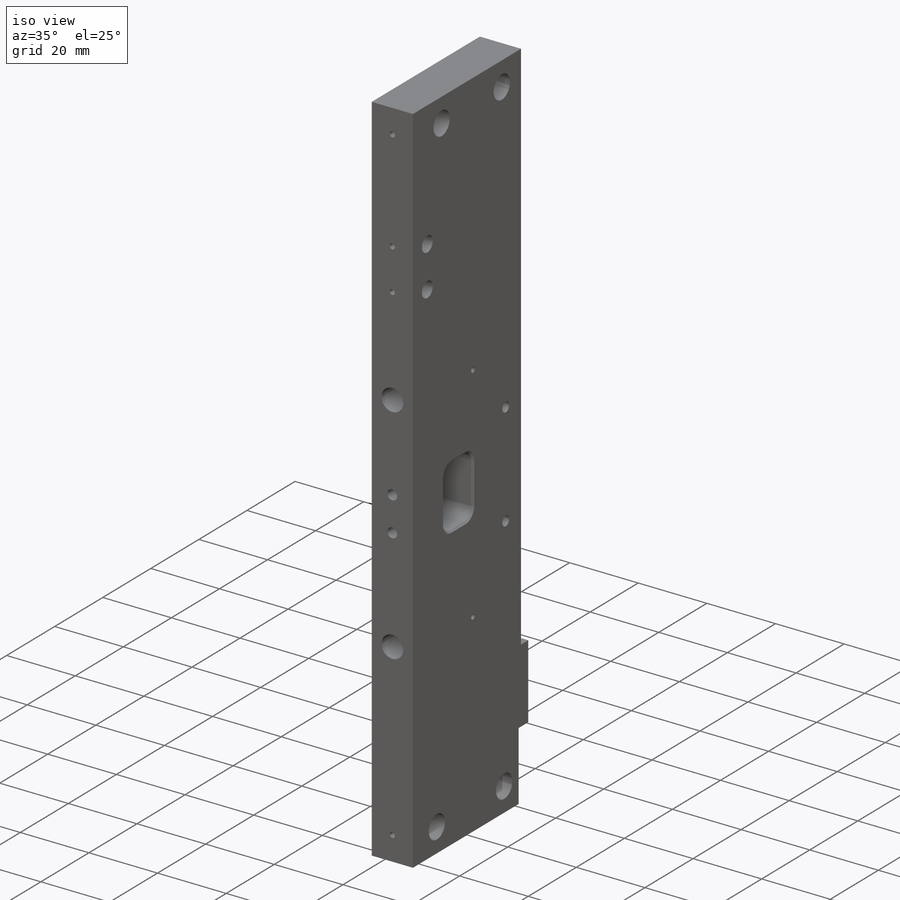
[diagram: iso view]
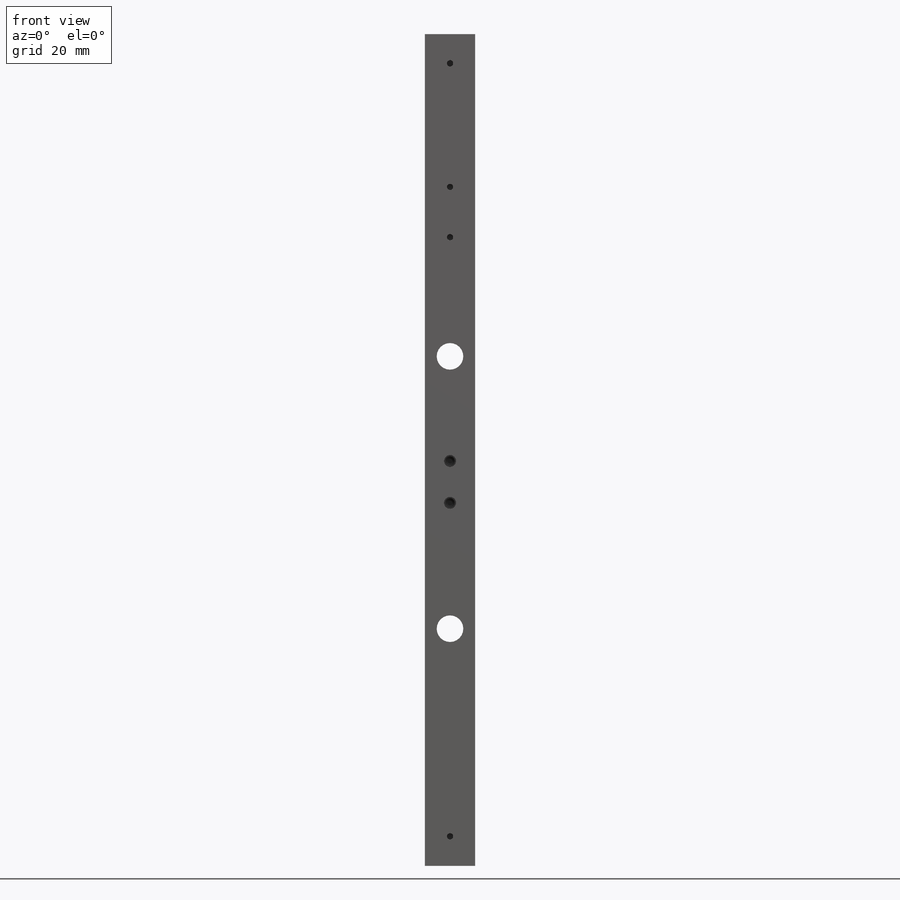
[diagram: front view]
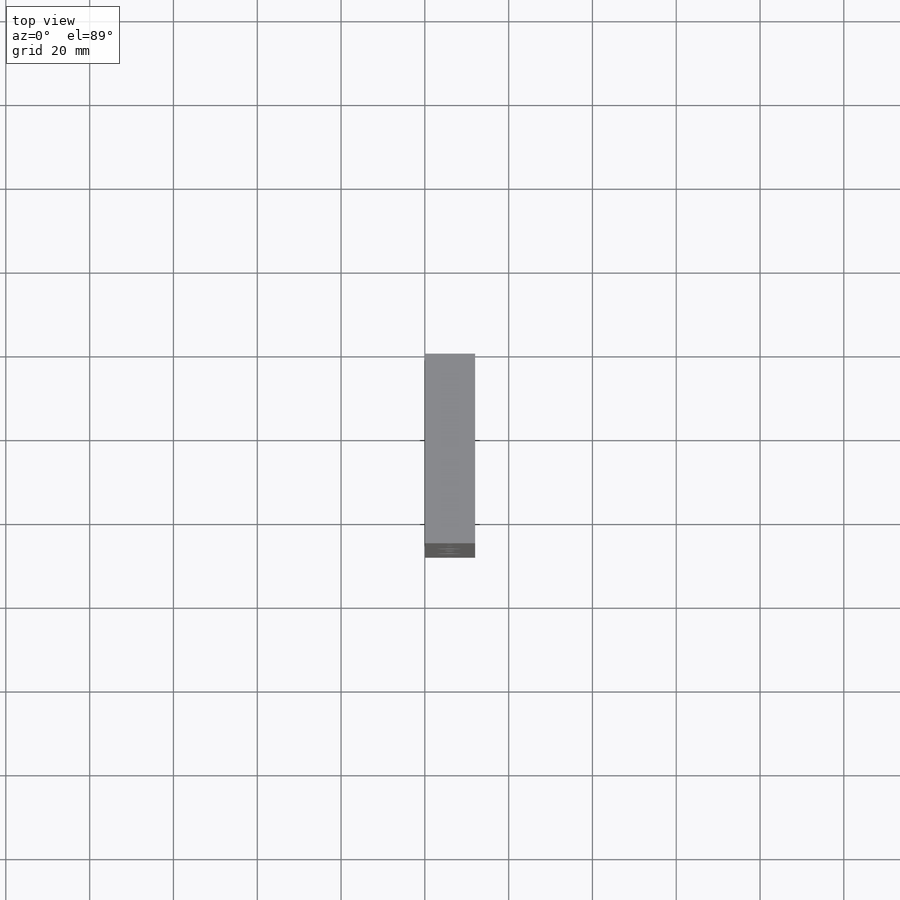
[diagram: top view]
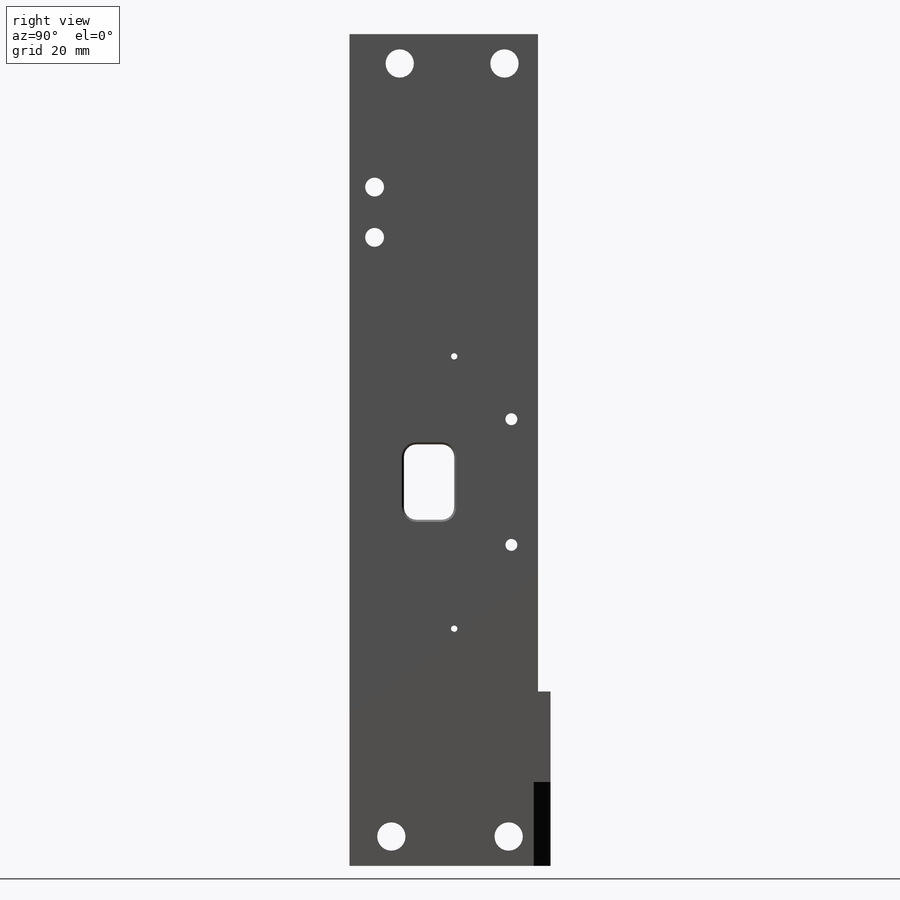
[diagram: right view]
SOLIDWORKS PART (.sldprt)
format: sldprt  version: not decoded by parser v0  size: 1,049,600 bytes
history: native  units: mm
features: sketch x16, cut_extrude x9, hole x3, plane x2, material x1, extrude x1, fillet x1, chamfer x1, mirror x1 + 1 further entry (+13 scaffold rows collapsed)
feature tree (49):
  scaffold x13  (default folders/planes/origin — collapsed)
  material  "6061-T6 Al"
  "Origin"  ID=-1
  sketch  "Sketch1"  dims[D1=198.5mm D2=48.0mm]
  extrude  "Extrude1"  Depth=12mm
  sketch  "Sketch2"  dims[D1=41.6mm D2=3.0mm]
  cut_extrude  "Extrude2"  [1 undecoded]
  sketch  "Sketch3"  dims[c1.D3=6.7564mm c1.D4=6.7564mm c1.D5=6.7564mm c1.D6=6.7564mm c1.D14=1.5mm c1.D15=1.5mm c1.D1=12.0mm c1.D2=32.0mm c1.D7=7.0mm c1.D8=7.0mm c1.D9=10.0mm c1.D10=33.0mm c1.D11=25.0mm c1.D12=56.6mm c1.D13=121.6mm c2.D2=25.0mm c2.D9=28.0mm c2.D10=10.0mm]
  cut_extrude  "Extrude3"  [1 undecoded]
  sketch  "Sketch4"  dims[D1=25.0mm D2=82.6mm D3=18.0mm D4=12.0mm]
  cut_extrude  "Extrude4"  [1 undecoded]
  fillet  "Fillet1"  Radius=3mm
  chamfer  "Chamfer1"  Distance=0.5mm Angle=45deg
  sketch  "Sketch5"  dims[D1=4.0mm]
  cut_extrude  "Extrude5"  Depth=20mm
  plane  "Plane1"
  mirror  "Mirror1"
  hole  "#4-40 Tapped Hole1"  Diameter=2.8448mm Depth=12mm
  sketch  "3DSketch1"  dims[D1=30.0mm D2=76.6mm D3=6.35mm]
  sketch  "Sketch6"  dims[hole-wizard template sketch: 59 standard entries collapsed; hole parameters kept: c18.Thread Major Dia.=2.8448mm c18.Thru Tap Drill Depth=12.0mm]
  hole  "#4-40 Tapped Hole2"  Diameter=2.2606mm Depth=12.6746mm
  sketch  "3DSketch2"  dims[D1=10.0mm D2=86.6mm D3=6.0mm]
  sketch  "Sketch7"  dims[hole-wizard template sketch: 29 standard entries collapsed; hole parameters kept: c8.Tap Drill Depth=12.6746mm c8.Thread Major Dia.=2.8448mm c8.Thread Depth=5.6896mm c8.D5=~14.816244mm c8.Drill Angle=118.0deg]
  hole  "1/4-20 Tapped Hole1"  Diameter=6.35mm Depth=48mm
  sketch  "3DSketch3"  dims[c1.D1=~86.067527mm c1.D2=~86.067527mm c2.D1=56.6mm c2.D2=121.6mm c2.D3=6.0mm]
  sketch  "Sketch8"  dims[hole-wizard template sketch: 60 standard entries collapsed; hole parameters kept: c18.Thru Tap Drill Depth=48.0mm]
  sketch  "Sketch9"  dims[D1=1.5mm D2=1.5mm D3=6.0mm D4=7.0mm D5=7.0mm]
  cut_extrude  "Extrude6"  Depth=8mm
  sketch  "Sketch10"  dims[D1=1.5mm D2=6.0mm D3=7.0mm]
  cut_extrude  "Extrude7"  Depth=8mm
  sketch  "Sketch12"  dims[D1=1.5mm D2=7.0mm D3=6.0mm]
  cut_extrude  "Extrude8"  Depth=8mm
  sketch  "Sketch13"  dims[D1=4.5mm D2=4.5mm D3=6.0mm D4=150.0mm D5=12.0mm]
  cut_extrude  "Cut-Extrude1"  [1 undecoded]
  sketch  "Sketch14"  dims[D1=1.5mm D2=1.5mm D3=150.0mm D4=12.0mm]
  cut_extrude  "Cut-Extrude2"  Depth=6mm
  plane  "Plane2"
decode coverage: 27 of 32 modeling features carry decoded parameters; 1 rows unclassified (native names shown)
note: ~ marks probable driven/reference dimensions
note: 4 parameter values undecoded
summary: no parameter record found for 4 features
note: suppression state not decoded; provenance and decode notes live in map.json
